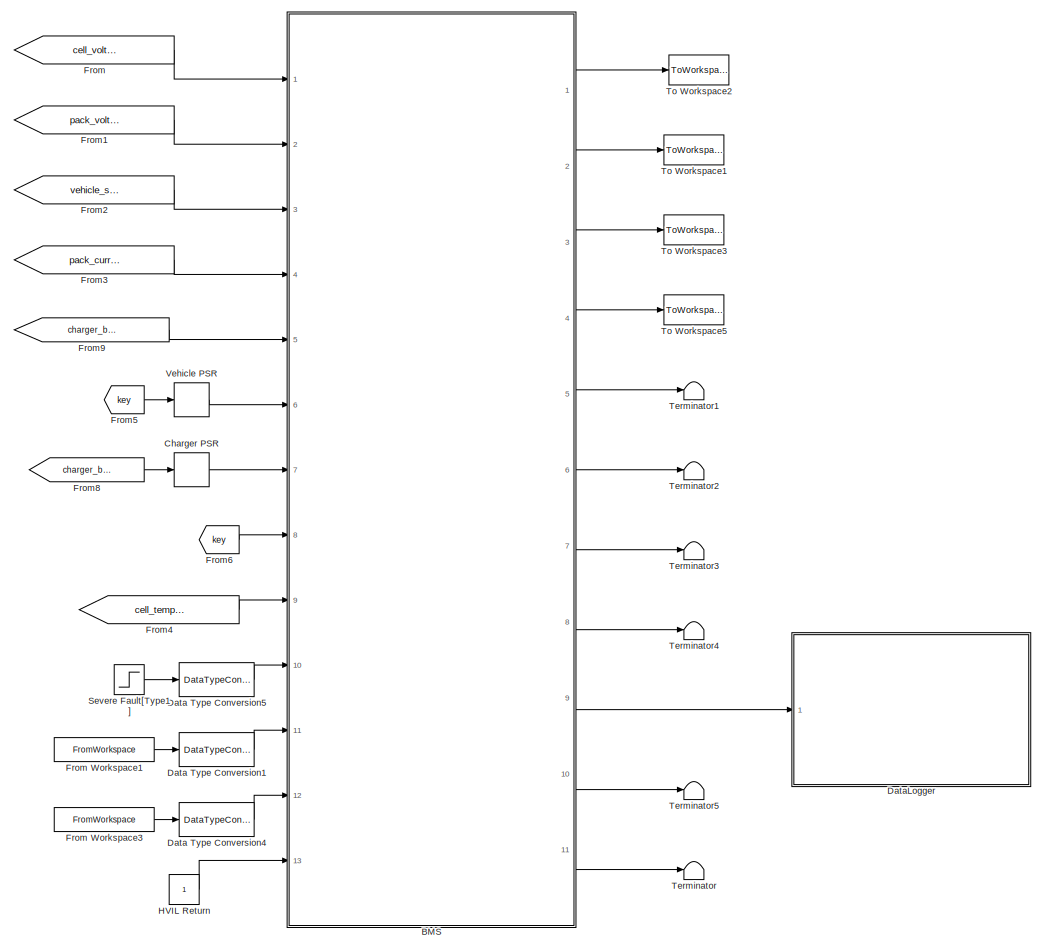
[diagram: root canvas - part 1/2, right side, full height]
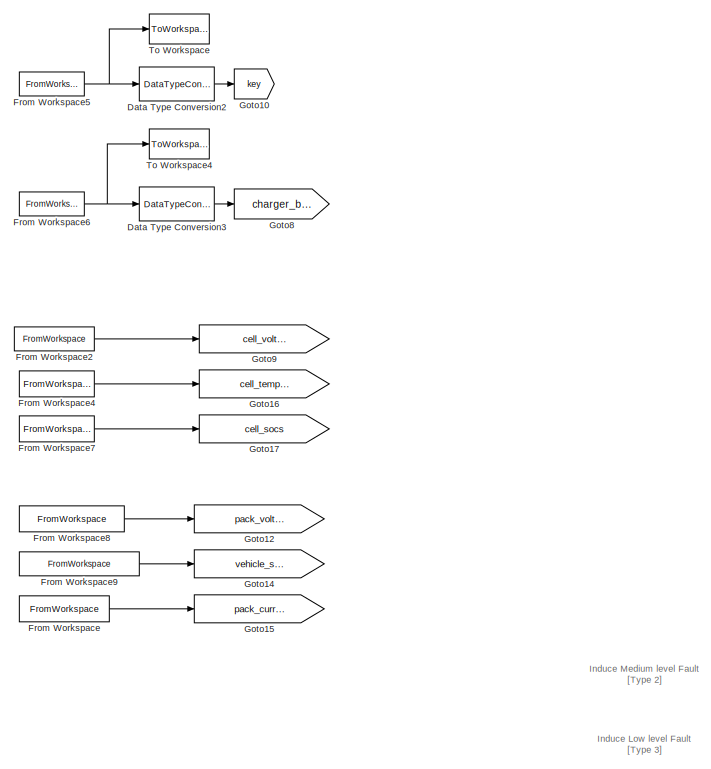
[diagram: root canvas - part 2/2, left side, full height]
MODEL slx_aaf03f47d59a
KIND model
CONFIG AbsTol = auto
CONFIG FixedStep = 0.1
CONFIG MaxStep = auto
CONFIG MinStep = auto
CONFIG RelTol = 1e-3
CONFIG SampleTimeConstraint = Unconstrained
CONFIG Solver = FixedStepDiscrete
CONFIG SolverMode = Auto
CONFIG SolverName = FixedStepDiscrete
CONFIG StartTime = 0.0
CONFIG StopTime = 150
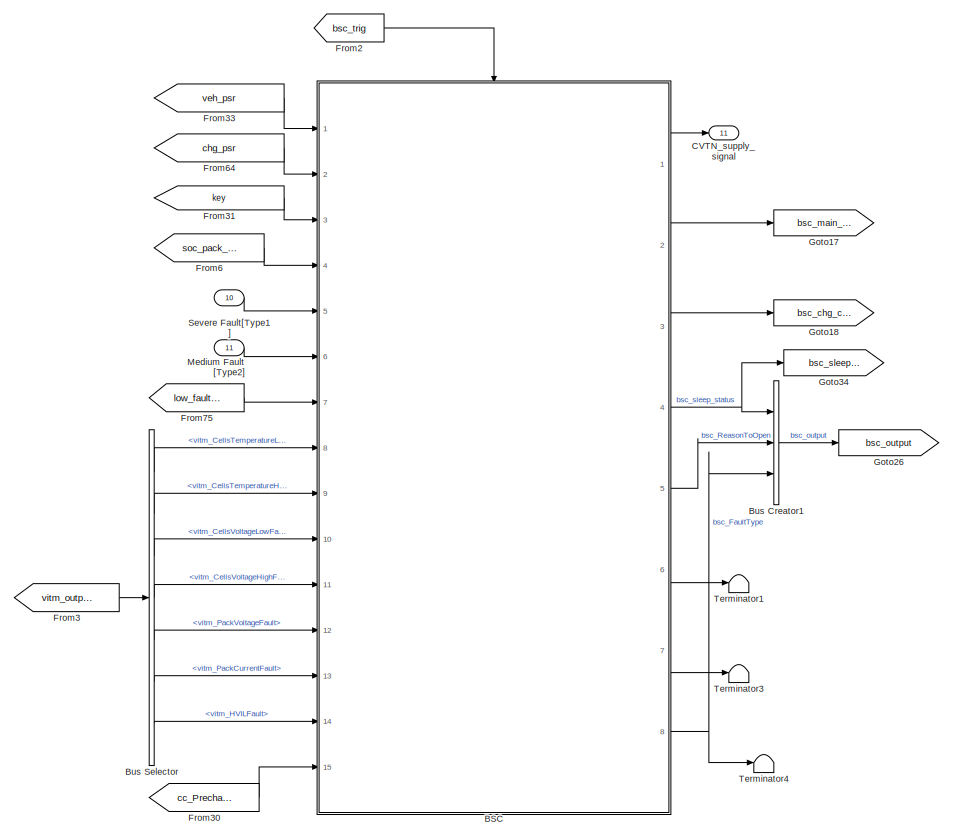
[diagram: BMS - part 1/9, top center region]
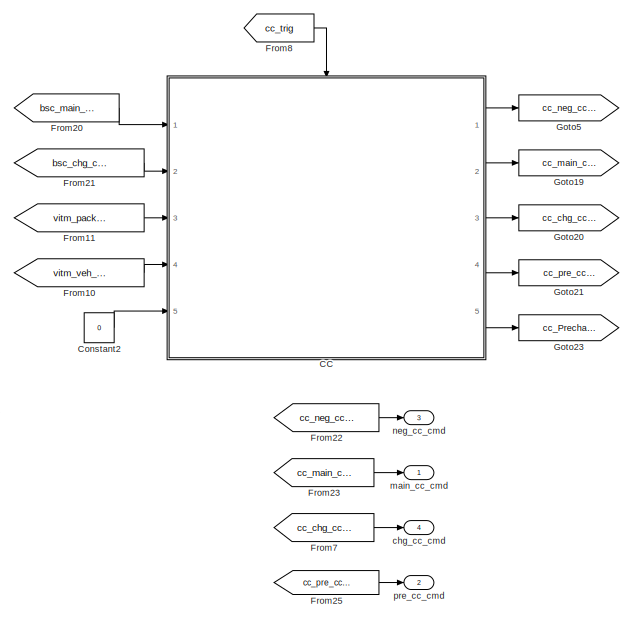
[diagram: BMS - part 2/9, top center region]
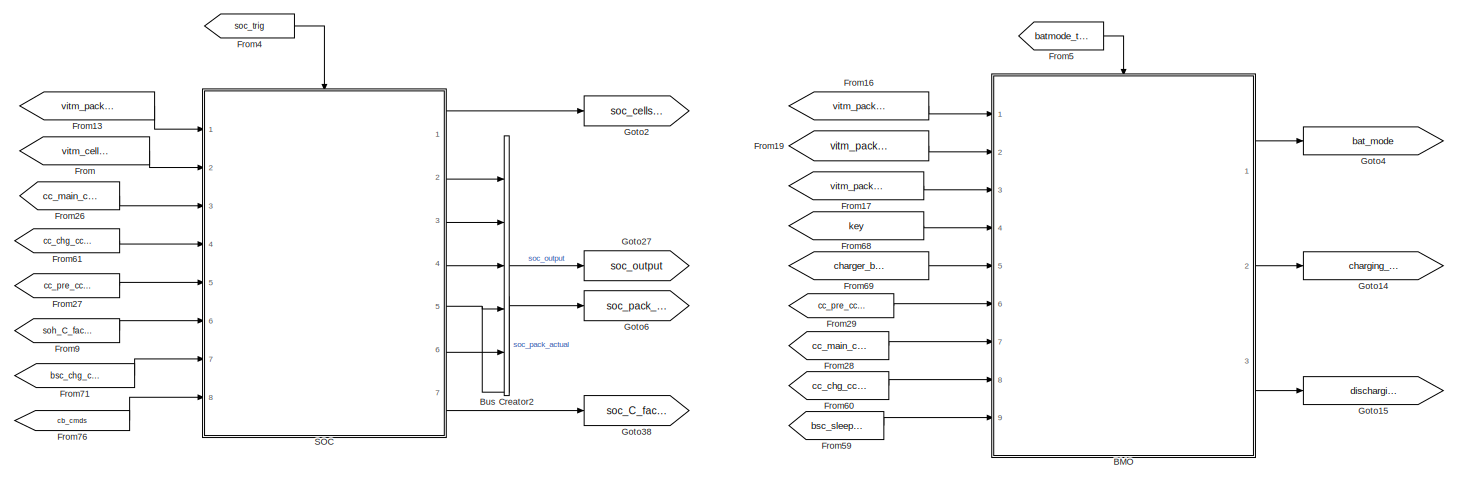
[diagram: BMS - part 3/9, top right region]
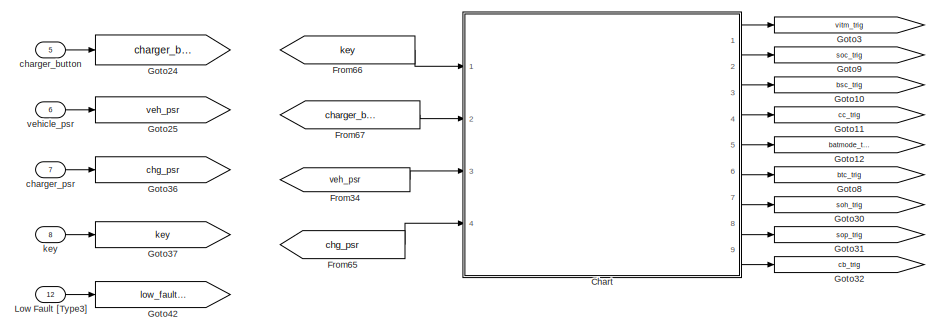
[diagram: BMS - part 4/9, top left region]
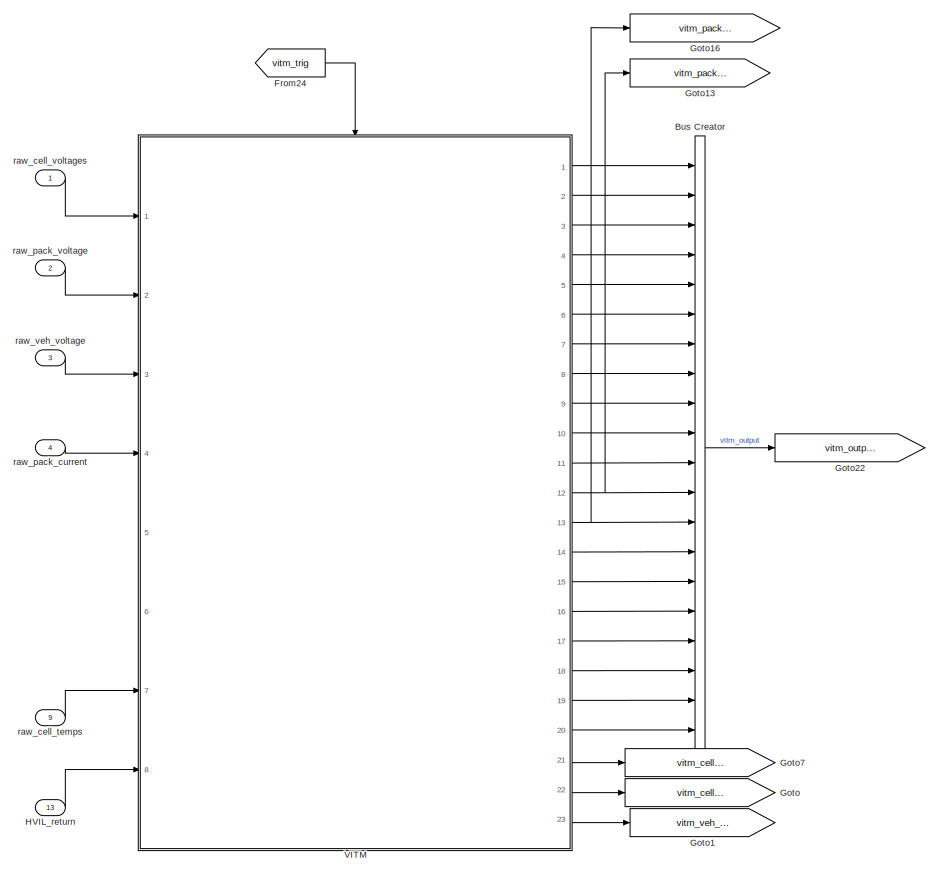
[diagram: BMS - part 5/9, middle left region]
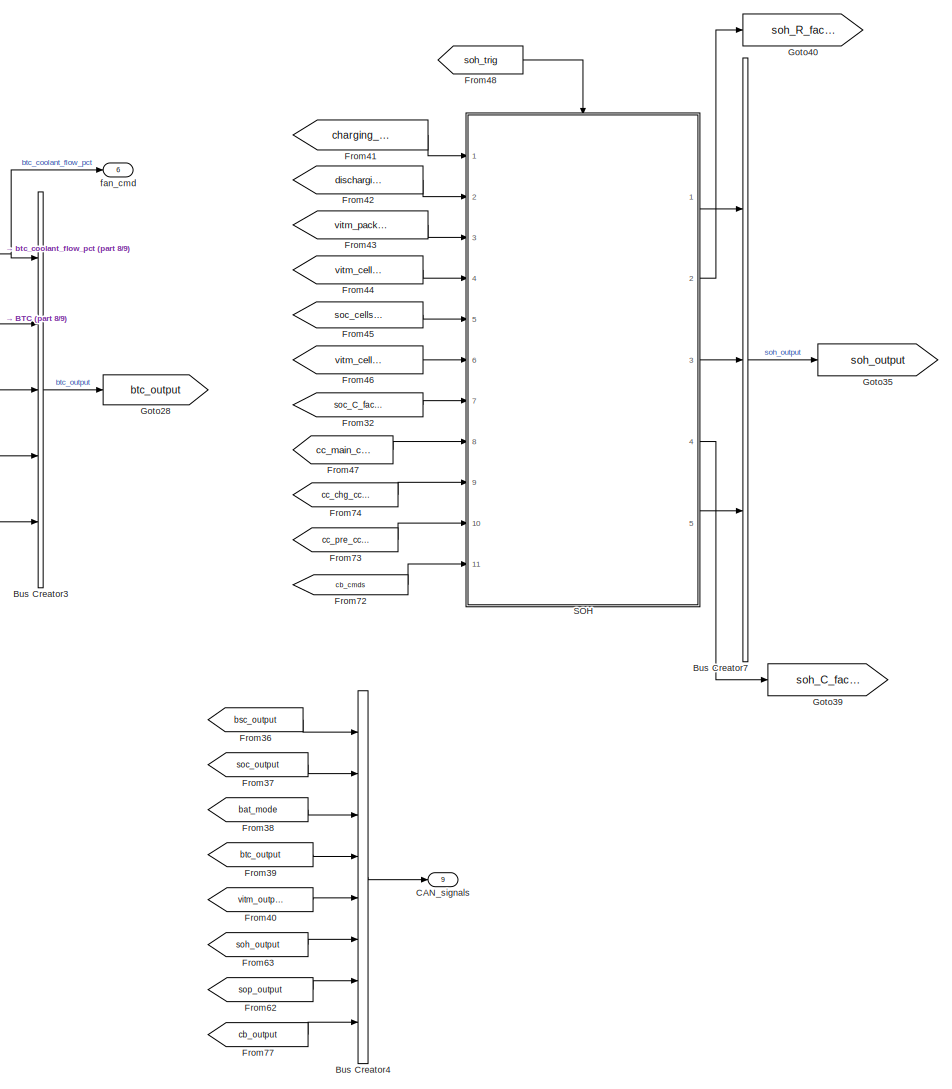
[diagram: BMS - part 6/9, bottom center region]
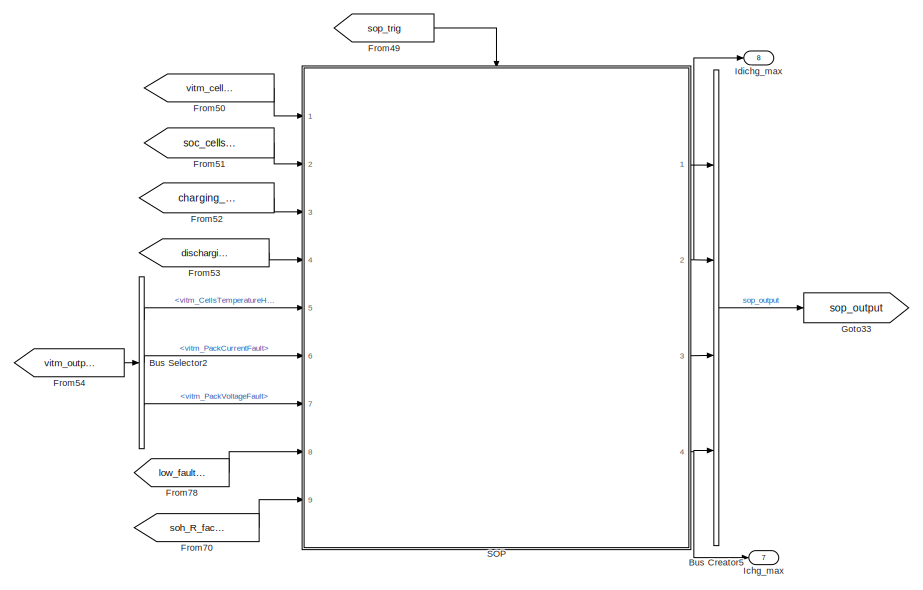
[diagram: BMS - part 7/9, middle right region]
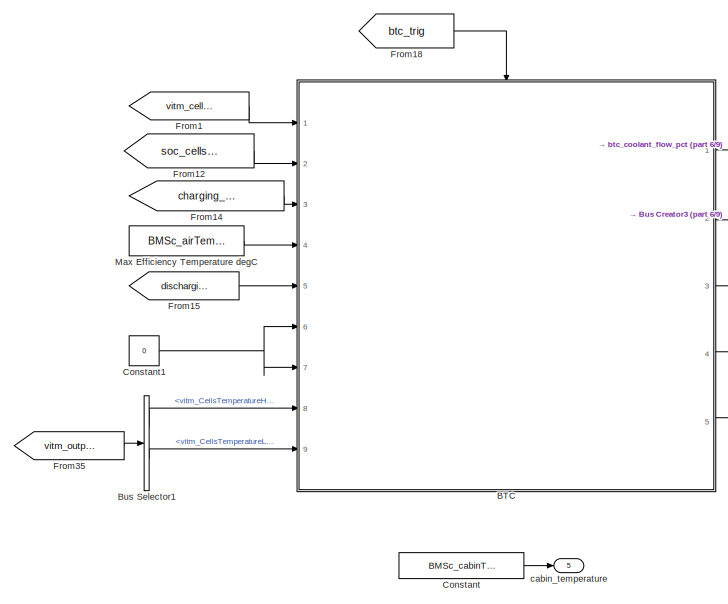
[diagram: BMS - part 8/9, middle left region]
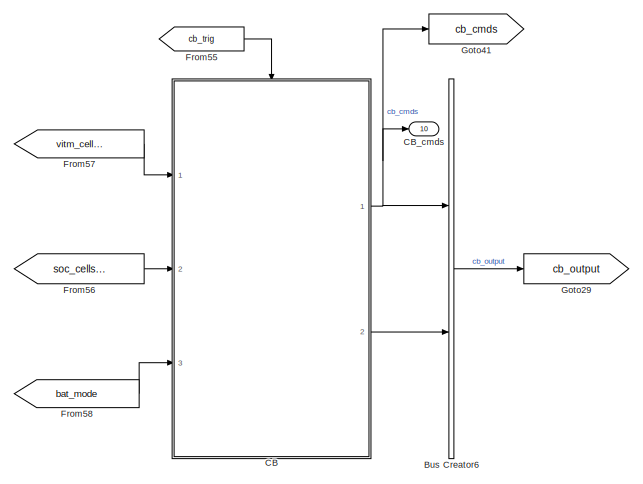
[diagram: BMS - part 9/9, middle right region]
BLOCK [SubSystem] BMS
  Ports = [13, 11]
  RequestExecContextInheritance = off
  Variant = off
BLOCK [ModelReference] BMS/BMO
  CopyOfModelName = BMO_sfun.slx
  ModelNameDialog = BMO_sfun.slx
  ModelReferenceVersion = 1.4
  Ports = [9, 3, 0, 1]
  TriggerPortName = Trigger
  TriggerPortStatesWhenEnabling = held
  TriggerPortTriggerType = function-call
  Variant = on
BLOCK [ModelReference] BMS/BSC
  CopyOfModelName = BSC_sfun.slx
  ModelNameDialog = BSC_sfun.slx
  ModelReferenceVersion = 1.3
  Ports = [15, 8, 0, 1]
  TriggerPortName = Trigger
  TriggerPortStatesWhenEnabling = held
  TriggerPortTriggerType = function-call
  Variant = on
BLOCK [ModelReference] BMS/BTC
  CopyOfModelName = BTC_sfun.slx
  ModelNameDialog = BTC_sfun.slx
  ModelReferenceVersion = 1.3
  Ports = [9, 5, 0, 1]
  TriggerPortName = Trigger
  TriggerPortStatesWhenEnabling = held
  TriggerPortTriggerType = function-call
  Variant = on
BLOCK [BusCreator] BMS/Bus Creator
  DisplayOption = bar
  InheritFromInputs = on
  Inputs = 20
  Ports = [20, 1]
BLOCK [BusCreator] BMS/Bus Creator1
  DisplayOption = bar
  InheritFromInputs = on
  Inputs = 3
  Ports = [3, 1]
BLOCK [BusCreator] BMS/Bus Creator2
  DisplayOption = bar
  InheritFromInputs = on
  Inputs = 5
  Ports = [5, 1]
BLOCK [BusCreator] BMS/Bus Creator3
  DisplayOption = bar
  InheritFromInputs = on
  Inputs = 5
  Ports = [5, 1]
BLOCK [BusCreator] BMS/Bus Creator4
  DisplayOption = bar
  InheritFromInputs = on
  Inputs = 8
  Ports = [8, 1]
BLOCK [BusCreator] BMS/Bus Creator5
  DisplayOption = bar
  InheritFromInputs = on
  Inputs = 4
  Ports = [4, 1]
BLOCK [BusCreator] BMS/Bus Creator6
  DisplayOption = bar
  InheritFromInputs = on
  Inputs = 2
  Ports = [2, 1]
BLOCK [BusCreator] BMS/Bus Creator7
  DisplayOption = bar
  InheritFromInputs = on
  Inputs = 3
  Ports = [3, 1]
BLOCK [BusSelector] BMS/Bus Selector
  OutputSignals = vitm_CellsTemperatureLowFault,vitm_CellsTemperatureHighFault,vitm_CellsVoltageLowFault,vitm_CellsVoltageHighFault,vitm_PackVoltageFault,vitm_PackCurrentFault,vitm_HVILFault
  Ports = [1, 7]
BLOCK [BusSelector] BMS/Bus Selector1
  OutputSignals = vitm_CellsTemperatureHighFault,vitm_CellsTemperatureLowFault
  Ports = [1, 2]
BLOCK [BusSelector] BMS/Bus Selector2
  OutputSignals = vitm_CellsTemperatureHighFault,vitm_PackCurrentFault,vitm_PackVoltageFault
  Ports = [1, 3]
BLOCK [Outport] BMS/CAN_signals
  IconDisplay = Port number
  Port = 9
BLOCK [ModelReference] BMS/CB
  CopyOfModelName = CB_sfun.slx
  ModelNameDialog = CB_sfun.slx
  ModelReferenceVersion = 1.3
  Ports = [3, 2, 0, 1]
  TriggerPortName = Trigger
  TriggerPortStatesWhenEnabling = held
  TriggerPortTriggerType = function-call
  Variant = on
BLOCK [Outport] BMS/CB_cmds
  IconDisplay = Port number
  Port = 10
BLOCK [ModelReference] BMS/CC
  CopyOfModelName = CC_sfun.slx
  ModelNameDialog = CC_sfun.slx
  ModelReferenceVersion = 1.2
  Ports = [5, 5, 0, 1]
  TriggerPortName = Trigger
  TriggerPortStatesWhenEnabling = held
  TriggerPortTriggerType = function-call
  Variant = on
BLOCK [Outport] BMS/CVTN_supply_signal
  IconDisplay = Port number
  Port = 11
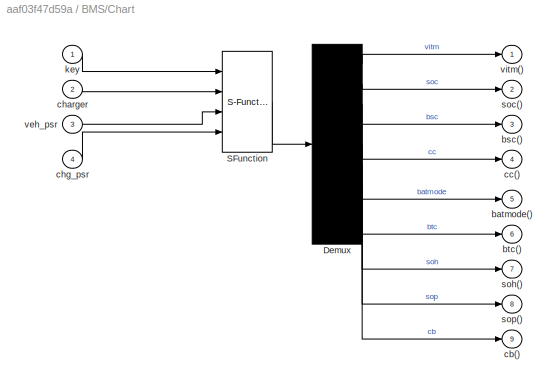
BLOCK [SubSystem] BMS/Chart
  ErrorFcn = Stateflow.Translate.translate
  PermitHierarchicalResolution = ExplicitOnly
  Ports = [4, 9]
  RequestExecContextInheritance = off
  SFBlockType = Chart
  TreatAsAtomicUnit = on
  Variant = off
BLOCK [Demux] BMS/Chart/ Demux 
  Outputs = 9
  Ports = [1, 9]
BLOCK [S-Function] BMS/Chart/ SFunction 
  EnableBusSupport = on
  FunctionName = sf_sfun
  PortCounts = [4 1]
  Ports = [4, 1]
  SFunctionDeploymentMode = off
  Tag = Stateflow S-Function BMS_OL_Harness_advancedcell 3
BLOCK [Outport] BMS/Chart/batmode()
  IconDisplay = Port number
  Port = 5
BLOCK [Outport] BMS/Chart/bsc()
  IconDisplay = Port number
  Port = 3
BLOCK [Outport] BMS/Chart/btc()
  IconDisplay = Port number
  Port = 6
BLOCK [Outport] BMS/Chart/cb()
  IconDisplay = Port number
  Port = 9
BLOCK [Outport] BMS/Chart/cc()
  IconDisplay = Port number
  Port = 4
BLOCK [Inport] BMS/Chart/charger
  IconDisplay = Port number
  Port = 2
BLOCK [Inport] BMS/Chart/chg_psr
  IconDisplay = Port number
  Port = 4
BLOCK [Inport] BMS/Chart/key
  IconDisplay = Port number
BLOCK [Outport] BMS/Chart/soc()
  IconDisplay = Port number
  Port = 2
BLOCK [Outport] BMS/Chart/soh()
  IconDisplay = Port number
  Port = 7
BLOCK [Outport] BMS/Chart/sop()
  IconDisplay = Port number
  Port = 8
BLOCK [Inport] BMS/Chart/veh_psr
  IconDisplay = Port number
  Port = 3
BLOCK [Outport] BMS/Chart/vitm()
  IconDisplay = Port number
BLOCK [Constant] BMS/Constant
  SampleTime = BMSk_stepSize
  Value = BMSc_cabinTemperature
BLOCK [Constant] BMS/Constant1
  OutDataTypeStr = boolean
  SampleTime = -1
  Value = 0
BLOCK [Constant] BMS/Constant2
  OutDataTypeStr = double
  SampleTime = -1
  Value = 0
BLOCK [From] BMS/From
  GotoTag = vitm_cell_voltages
BLOCK [From] BMS/From1
  GotoTag = vitm_cell_temps
BLOCK [From] BMS/From10
  GotoTag = vitm_veh_voltage
BLOCK [From] BMS/From11
  GotoTag = vitm_pack_voltage
BLOCK [From] BMS/From12
  GotoTag = soc_cells_pct
  TagVisibility = global
BLOCK [From] BMS/From13
  GotoTag = vitm_pack_current
BLOCK [From] BMS/From14
  GotoTag = charging_status
BLOCK [From] BMS/From15
  GotoTag = discharging_status
BLOCK [From] BMS/From16
  GotoTag = vitm_pack_voltage
BLOCK [From] BMS/From17
  GotoTag = vitm_pack_current
BLOCK [From] BMS/From18
  GotoTag = btc_trig
BLOCK [From] BMS/From19
  GotoTag = vitm_pack_voltage
BLOCK [From] BMS/From2
  GotoTag = bsc_trig
BLOCK [From] BMS/From20
  GotoTag = bsc_main_cc_cmd
BLOCK [From] BMS/From21
  GotoTag = bsc_chg_cc_cmd
BLOCK [From] BMS/From22
  GotoTag = cc_neg_cc_cmd
BLOCK [From] BMS/From23
  GotoTag = cc_main_cc_cmd
BLOCK [From] BMS/From24
  GotoTag = vitm_trig
BLOCK [From] BMS/From25
  GotoTag = cc_pre_cc_cmd
BLOCK [From] BMS/From26
  GotoTag = cc_main_cc_cmd
BLOCK [From] BMS/From27
  GotoTag = cc_pre_cc_cmd
BLOCK [From] BMS/From28
  GotoTag = cc_main_cc_cmd
BLOCK [From] BMS/From29
  GotoTag = cc_pre_cc_cmd
BLOCK [From] BMS/From3
  GotoTag = vitm_output
BLOCK [From] BMS/From30
  GotoTag = cc_PrechargeFault
BLOCK [From] BMS/From31
  GotoTag = key
BLOCK [From] BMS/From32
  GotoTag = soc_C_factors
  TagVisibility = global
BLOCK [From] BMS/From33
  GotoTag = veh_psr
BLOCK [From] BMS/From34
  GotoTag = veh_psr
BLOCK [From] BMS/From35
  GotoTag = vitm_output
BLOCK [From] BMS/From36
  GotoTag = bsc_output
BLOCK [From] BMS/From37
  GotoTag = soc_output
  TagVisibility = global
BLOCK [From] BMS/From38
  GotoTag = bat_mode
  TagVisibility = global
BLOCK [From] BMS/From39
  GotoTag = btc_output
  TagVisibility = global
BLOCK [From] BMS/From4
  GotoTag = soc_trig
BLOCK [From] BMS/From40
  GotoTag = vitm_output
BLOCK [From] BMS/From41
  GotoTag = charging_status
BLOCK [From] BMS/From42
  GotoTag = discharging_status
BLOCK [From] BMS/From43
  GotoTag = vitm_pack_current
BLOCK [From] BMS/From44
  GotoTag = vitm_cell_voltages
BLOCK [From] BMS/From45
  GotoTag = soc_cells_pct
  TagVisibility = global
BLOCK [From] BMS/From46
  GotoTag = vitm_cell_temps
BLOCK [From] BMS/From47
  GotoTag = cc_main_cc_cmd
BLOCK [From] BMS/From48
  GotoTag = soh_trig
BLOCK [From] BMS/From49
  GotoTag = sop_trig
BLOCK [From] BMS/From5
  GotoTag = batmode_trig
BLOCK [From] BMS/From50
  GotoTag = vitm_cell_temps
BLOCK [From] BMS/From51
  GotoTag = soc_cells_pct
  TagVisibility = global
BLOCK [From] BMS/From52
  GotoTag = charging_status
BLOCK [From] BMS/From53
  GotoTag = discharging_status
BLOCK [From] BMS/From54
  GotoTag = vitm_output
BLOCK [From] BMS/From55
  GotoTag = cb_trig
BLOCK [From] BMS/From56
  GotoTag = soc_cells_pct
  TagVisibility = global
BLOCK [From] BMS/From57
  GotoTag = vitm_cell_voltages
BLOCK [From] BMS/From58
  GotoTag = bat_mode
  TagVisibility = global
BLOCK [From] BMS/From59
  GotoTag = bsc_sleep_status
BLOCK [From] BMS/From6
  GotoTag = soc_pack_actual
  TagVisibility = global
BLOCK [From] BMS/From60
  GotoTag = cc_chg_cc_cmd
BLOCK [From] BMS/From61
  GotoTag = cc_chg_cc_cmd
BLOCK [From] BMS/From62
  GotoTag = sop_output
  TagVisibility = global
BLOCK [From] BMS/From63
  GotoTag = soh_output
  TagVisibility = global
BLOCK [From] BMS/From64
  GotoTag = chg_psr
BLOCK [From] BMS/From65
  GotoTag = chg_psr
BLOCK [From] BMS/From66
  GotoTag = key
BLOCK [From] BMS/From67
  GotoTag = charger_button
BLOCK [From] BMS/From68
  GotoTag = key
BLOCK [From] BMS/From69
  GotoTag = charger_button
BLOCK [From] BMS/From7
  GotoTag = cc_chg_cc_cmd
BLOCK [From] BMS/From70
  GotoTag = soh_R_factors
  TagVisibility = global
BLOCK [From] BMS/From71
  GotoTag = bsc_chg_cc_cmd
BLOCK [From] BMS/From72
  GotoTag = cb_cmds
BLOCK [From] BMS/From73
  GotoTag = cc_pre_cc_cmd
BLOCK [From] BMS/From74
  GotoTag = cc_chg_cc_cmd
BLOCK [From] BMS/From75
  GotoTag = low_fault_Type3
BLOCK [From] BMS/From76
  GotoTag = cb_cmds
BLOCK [From] BMS/From77
  GotoTag = cb_output
  TagVisibility = global
BLOCK [From] BMS/From78
  GotoTag = low_fault_Type3
BLOCK [From] BMS/From8
  GotoTag = cc_trig
BLOCK [From] BMS/From9
  GotoTag = soh_C_factors
  TagVisibility = global
BLOCK [Goto] BMS/Goto
  GotoTag = vitm_cell_voltages
BLOCK [Goto] BMS/Goto1
  GotoTag = vitm_veh_voltage
BLOCK [Goto] BMS/Goto10
  GotoTag = bsc_trig
BLOCK [Goto] BMS/Goto11
  GotoTag = cc_trig
BLOCK [Goto] BMS/Goto12
  GotoTag = batmode_trig
BLOCK [Goto] BMS/Goto13
  GotoTag = vitm_pack_voltage
BLOCK [Goto] BMS/Goto14
  GotoTag = charging_status
BLOCK [Goto] BMS/Goto15
  GotoTag = discharging_status
BLOCK [Goto] BMS/Goto16
  GotoTag = vitm_pack_current
BLOCK [Goto] BMS/Goto17
  GotoTag = bsc_main_cc_cmd
BLOCK [Goto] BMS/Goto18
  GotoTag = bsc_chg_cc_cmd
BLOCK [Goto] BMS/Goto19
  GotoTag = cc_main_cc_cmd
BLOCK [Goto] BMS/Goto2
  GotoTag = soc_cells_pct
  TagVisibility = global
BLOCK [Goto] BMS/Goto20
  GotoTag = cc_chg_cc_cmd
BLOCK [Goto] BMS/Goto21
  GotoTag = cc_pre_cc_cmd
BLOCK [Goto] BMS/Goto22
  GotoTag = vitm_output
BLOCK [Goto] BMS/Goto23
  GotoTag = cc_PrechargeFault
BLOCK [Goto] BMS/Goto24
  GotoTag = charger_button
BLOCK [Goto] BMS/Goto25
  GotoTag = veh_psr
BLOCK [Goto] BMS/Goto26
  GotoTag = bsc_output
BLOCK [Goto] BMS/Goto27
  GotoTag = soc_output
  TagVisibility = global
BLOCK [Goto] BMS/Goto28
  GotoTag = btc_output
  TagVisibility = global
BLOCK [Goto] BMS/Goto29
  GotoTag = cb_output
  TagVisibility = global
BLOCK [Goto] BMS/Goto3
  GotoTag = vitm_trig
BLOCK [Goto] BMS/Goto30
  GotoTag = soh_trig
BLOCK [Goto] BMS/Goto31
  GotoTag = sop_trig
BLOCK [Goto] BMS/Goto32
  GotoTag = cb_trig
BLOCK [Goto] BMS/Goto33
  GotoTag = sop_output
  TagVisibility = global
BLOCK [Goto] BMS/Goto34
  GotoTag = bsc_sleep_status
BLOCK [Goto] BMS/Goto35
  GotoTag = soh_output
  TagVisibility = global
BLOCK [Goto] BMS/Goto36
  GotoTag = chg_psr
BLOCK [Goto] BMS/Goto37
  GotoTag = key
BLOCK [Goto] BMS/Goto38
  GotoTag = soc_C_factors
  TagVisibility = global
BLOCK [Goto] BMS/Goto39
  GotoTag = soh_C_factors
  TagVisibility = global
BLOCK [Goto] BMS/Goto4
  GotoTag = bat_mode
  TagVisibility = global
BLOCK [Goto] BMS/Goto40
  GotoTag = soh_R_factors
  TagVisibility = global
BLOCK [Goto] BMS/Goto41
  GotoTag = cb_cmds
BLOCK [Goto] BMS/Goto42
  GotoTag = low_fault_Type3
BLOCK [Goto] BMS/Goto5
  GotoTag = cc_neg_cc_cmd
BLOCK [Goto] BMS/Goto6
  GotoTag = soc_pack_actual
  TagVisibility = global
BLOCK [Goto] BMS/Goto7
  GotoTag = vitm_cell_temps
BLOCK [Goto] BMS/Goto8
  GotoTag = btc_trig
BLOCK [Goto] BMS/Goto9
  GotoTag = soc_trig
BLOCK [Inport] BMS/HVIL_return
  IconDisplay = Port number
  OutDataTypeStr = double
  Port = 13
BLOCK [Outport] BMS/Ichg_max
  IconDisplay = Port number
  Port = 7
BLOCK [Outport] BMS/Idichg_max
  IconDisplay = Port number
  Port = 8
BLOCK [Inport] BMS/Low Fault [Type3]
  IconDisplay = Port number
  Port = 12
BLOCK [Constant] BMS/Max Efficiency Temperature degC
  SampleTime = BMSk_stepSize
  Value = BMSc_airTemperature
BLOCK [Inport] BMS/Medium Fault [Type2]
  IconDisplay = Port number
  Port = 11
BLOCK [ModelReference] BMS/SOC
  CopyOfModelName = SOC.slx
  ModelNameDialog = SOC.slx
  ModelReferenceVersion = 1.297
  Ports = [8, 7, 0, 1]
  TriggerPortName = Trigger
  TriggerPortStatesWhenEnabling = held
  TriggerPortTriggerType = function-call
  Variant = on
BLOCK [ModelReference] BMS/SOH
  CopyOfModelName = soh_sfun.slx
  ModelNameDialog = soh_sfun.slx
  ModelReferenceVersion = 1.3
  Ports = [11, 5, 0, 1]
  TriggerPortName = Trigger
  TriggerPortStatesWhenEnabling = held
  TriggerPortTriggerType = function-call
  Variant = on
BLOCK [ModelReference] BMS/SOP
  CopyOfModelName = sop_sfun.slx
  ModelNameDialog = sop_sfun.slx
  ModelReferenceVersion = 1.4
  Ports = [9, 4, 0, 1]
  TriggerPortName = Trigger
  TriggerPortStatesWhenEnabling = held
  TriggerPortTriggerType = function-call
  Variant = on
BLOCK [Inport] BMS/Severe Fault[Type1]
  IconDisplay = Port number
  Port = 10
BLOCK [Terminator] BMS/Terminator1
BLOCK [Terminator] BMS/Terminator3
BLOCK [Terminator] BMS/Terminator4
BLOCK [ModelReference] BMS/VITM
  CopyOfModelName = VITM_sfun.slx
  ModelNameDialog = VITM_sfun.slx
  ModelReferenceVersion = 1.3
  Ports = [8, 23, 0, 1]
  TriggerPortName = Trigger
  TriggerPortStatesWhenEnabling = held
  TriggerPortTriggerType = function-call
  Variant = on
BLOCK [Outport] BMS/cabin_temperature
  IconDisplay = Port number
  Port = 5
BLOCK [Inport] BMS/charger_button
  IconDisplay = Port number
  OutDataTypeStr = uint8
  Port = 5
BLOCK [Inport] BMS/charger_psr
  IconDisplay = Port number
  Port = 7
BLOCK [Outport] BMS/chg_cc_cmd
  IconDisplay = Port number
  Port = 4
BLOCK [Outport] BMS/fan_cmd
  IconDisplay = Port number
  Port = 6
BLOCK [Inport] BMS/key
  IconDisplay = Port number
  OutDataTypeStr = uint8
  Port = 8
BLOCK [Outport] BMS/main_cc_cmd
  IconDisplay = Port number
BLOCK [Outport] BMS/neg_cc_cmd
  IconDisplay = Port number
  Port = 3
BLOCK [Outport] BMS/pre_cc_cmd
  IconDisplay = Port number
  Port = 2
BLOCK [Inport] BMS/raw_cell_temps
  IconDisplay = Port number
  Port = 9
BLOCK [Inport] BMS/raw_cell_voltages
  IconDisplay = Port number
BLOCK [Inport] BMS/raw_pack_current
  IconDisplay = Port number
  Port = 4
BLOCK [Inport] BMS/raw_pack_voltage
  IconDisplay = Port number
  Port = 2
BLOCK [Inport] BMS/raw_veh_voltage
  IconDisplay = Port number
  Port = 3
BLOCK [Inport] BMS/vehicle_psr
  IconDisplay = Port number
  Port = 6
BLOCK [Delay] Charger PSR
  DelayLength = 0.2/BMSk_stepSize
  InputPortMap = u0
  Ports = [1, 1]
BLOCK [DataTypeConversion] Data Type Conversion1
  RndMeth = Floor
  SaturateOnIntegerOverflow = off
BLOCK [DataTypeConversion] Data Type Conversion2
  RndMeth = Floor
  SaturateOnIntegerOverflow = off
BLOCK [DataTypeConversion] Data Type Conversion3
  RndMeth = Floor
  SaturateOnIntegerOverflow = off
BLOCK [DataTypeConversion] Data Type Conversion4
  RndMeth = Floor
  SaturateOnIntegerOverflow = off
BLOCK [DataTypeConversion] Data Type Conversion5
  RndMeth = Floor
  SaturateOnIntegerOverflow = off
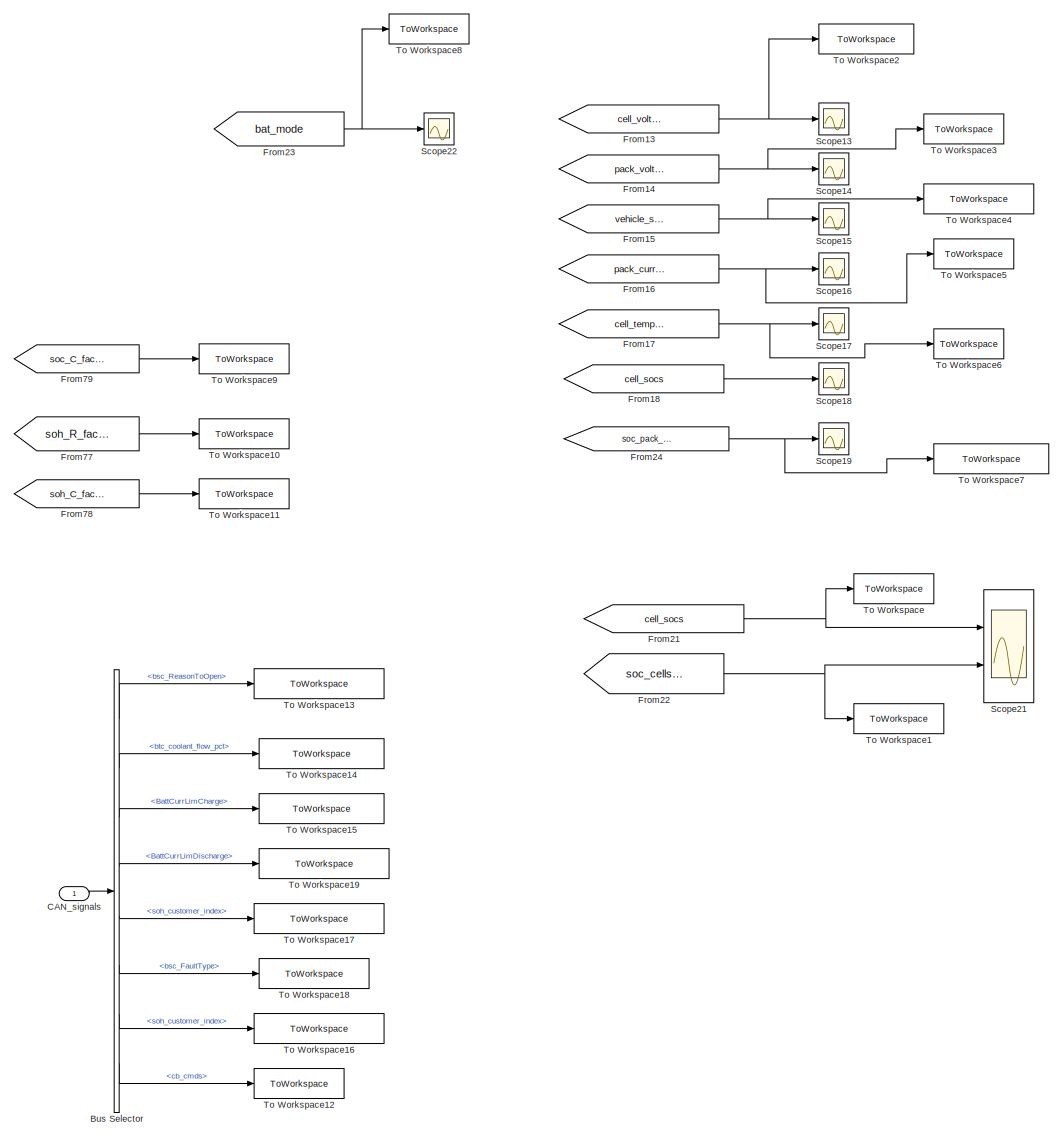
[diagram: DataLogger - part 1/1, most of the canvas]
BLOCK [SubSystem] DataLogger
  Ports = [1]
  RequestExecContextInheritance = off
  Variant = off
BLOCK [BusSelector] DataLogger/Bus Selector
  OutputSignals = bsc_output.bsc_ReasonToOpen,btc_output.btc_coolant_flow_pct,sop_output.BattCurrLimCharge,sop_output.BattCurrLimDischarge,soh_output.soh_customer_index,bsc_output.bsc_FaultType,soh_output.soh_customer_index,cb_output.cb_cmds
  Ports = [1, 8]
BLOCK [Inport] DataLogger/CAN_signals
  IconDisplay = Port number
BLOCK [From] DataLogger/From13
  CloseFcn = tagdialog Close
  GotoTag = cell_voltages
  TagVisibility = global
BLOCK [From] DataLogger/From14
  CloseFcn = tagdialog Close
  GotoTag = pack_voltage
  TagVisibility = global
BLOCK [From] DataLogger/From15
  CloseFcn = tagdialog Close
  GotoTag = vehicle_side_voltage
  TagVisibility = global
BLOCK [From] DataLogger/From16
  CloseFcn = tagdialog Close
  GotoTag = pack_current
  TagVisibility = global
BLOCK [From] DataLogger/From17
  CloseFcn = tagdialog Close
  GotoTag = cell_temperatures
  TagVisibility = global
BLOCK [From] DataLogger/From18
  CloseFcn = tagdialog Close
  GotoTag = cell_socs
  TagVisibility = global
BLOCK [From] DataLogger/From21
  CloseFcn = tagdialog Close
  GotoTag = cell_socs
  TagVisibility = global
BLOCK [From] DataLogger/From22
  CloseFcn = tagdialog Close
  GotoTag = soc_cells_pct
  TagVisibility = global
BLOCK [From] DataLogger/From23
  GotoTag = bat_mode
  TagVisibility = global
BLOCK [From] DataLogger/From24
  GotoTag = soc_pack_actual
  TagVisibility = global
BLOCK [From] DataLogger/From77
  GotoTag = soh_R_factors
  TagVisibility = global
BLOCK [From] DataLogger/From78
  GotoTag = soh_C_factors
  TagVisibility = global
BLOCK [From] DataLogger/From79
  GotoTag = soc_C_factors
  TagVisibility = global
BLOCK [Scope] DataLogger/Scope13
  Ports = [1]
  ScopeSpecificationString = Simulink.scopes.TimeScopeBlockCfg('CurrentConfiguration', extmgr.ConfigurationSet(extmgr.Configuration('Core','General UI',true),extmgr.Configuration('Core','Source UI',true),extmgr.Configuration('Sources','WiredSimulink',true,'DataLoggingVariableName','cell_voltages','DataLoggingSaveFormat','StructureWithTime','DataLoggingDecimation','1','DataLoggingDecimateData',true),extmgr.Configuration('Visua...<+2415ch>
BLOCK [Scope] DataLogger/Scope14
  Ports = [1]
  ScopeSpecificationString = Simulink.scopes.TimeScopeBlockCfg('CurrentConfiguration', extmgr.ConfigurationSet(extmgr.Configuration('Core','General UI',true),extmgr.Configuration('Core','Source UI',true),extmgr.Configuration('Sources','WiredSimulink',true,'DataLoggingVariableName','pack_voltage','DataLoggingSaveFormat','StructureWithTime','DataLoggingDecimation','1','DataLoggingDecimateData',true),extmgr.Configuration('Visual...<+1699ch>
BLOCK [Scope] DataLogger/Scope15
  Ports = [1]
  ScopeSpecificationString = Simulink.scopes.TimeScopeBlockCfg('CurrentConfiguration', extmgr.ConfigurationSet(extmgr.Configuration('Core','General UI',true),extmgr.Configuration('Core','Source UI',true),extmgr.Configuration('Sources','WiredSimulink',true,'DataLoggingVariableName','vehicle_side_voltage','DataLoggingSaveFormat','StructureWithTime','DataLoggingDecimation','1','DataLoggingDecimateData',true),extmgr.Configuration...<+1710ch>
BLOCK [Scope] DataLogger/Scope16
  Ports = [1]
  ScopeSpecificationString = Simulink.scopes.TimeScopeBlockCfg('CurrentConfiguration', extmgr.ConfigurationSet(extmgr.Configuration('Core','General UI',true),extmgr.Configuration('Core','Source UI',true),extmgr.Configuration('Sources','WiredSimulink',true,'DataLoggingVariableName','pack_current','DataLoggingSaveFormat','StructureWithTime','DataLoggingDecimation','1','DataLoggingDecimateData',true),extmgr.Configuration('Visual...<+1741ch>
BLOCK [Scope] DataLogger/Scope17
  Ports = [1]
  ScopeSpecificationString = Simulink.scopes.TimeScopeBlockCfg('CurrentConfiguration', extmgr.ConfigurationSet(extmgr.Configuration('Core','General UI',true),extmgr.Configuration('Core','Source UI',true),extmgr.Configuration('Sources','WiredSimulink',true,'DataLoggingVariableName','cell_temperatures','DataLoggingSaveFormat','StructureWithTime','DataLoggingDecimation','1','DataLoggingDecimateData',true),extmgr.Configuration('V...<+2512ch>
BLOCK [Scope] DataLogger/Scope18
  Ports = [1]
  ScopeSpecificationString = Simulink.scopes.TimeScopeBlockCfg('CurrentConfiguration', extmgr.ConfigurationSet(extmgr.Configuration('Core','General UI',true),extmgr.Configuration('Core','Source UI',true),extmgr.Configuration('Sources','WiredSimulink',true,'DataLoggingVariableName','cell_socs','DataLoggingSaveFormat','StructureWithTime','DataLoggingDecimation','1','DataLoggingDecimateData',true),extmgr.Configuration('Visuals',...<+2859ch>
BLOCK [Scope] DataLogger/Scope19
  Ports = [1]
  ScopeSpecificationString = Simulink.scopes.TimeScopeBlockCfg('CurrentConfiguration', extmgr.ConfigurationSet(extmgr.Configuration('Core','General UI',true),extmgr.Configuration('Core','Source UI',true),extmgr.Configuration('Sources','WiredSimulink',true,'DataLoggingVariableName','pack_soc','DataLoggingSaveFormat','StructureWithTime','DataLoggingDecimation','1','DataLoggingDecimateData',true),extmgr.Configuration('Visuals','...<+1700ch>
BLOCK [Scope] DataLogger/Scope21
  NumInputPorts = 2
  Ports = [2]
  ScopeSpecificationString = Simulink.scopes.TimeScopeBlockCfg('CurrentConfiguration', extmgr.ConfigurationSet(extmgr.Configuration('Core','General UI',true),extmgr.Configuration('Core','Source UI',true),extmgr.Configuration('Sources','WiredSimulink',true,'DataLogging',true,'DataLoggingVariableName','cell_socs1','DataLoggingSaveFormat','StructureWithTime','DataLoggingDecimation','1','DataLoggingDecimateData',true),extmgr.Conf...<+3501ch>
BLOCK [Scope] DataLogger/Scope22
  Ports = [1]
  ScopeSpecificationString = Simulink.scopes.TimeScopeBlockCfg('CurrentConfiguration', extmgr.ConfigurationSet(extmgr.Configuration('Core','General UI',true),extmgr.Configuration('Core','Source UI',true),extmgr.Configuration('Sources','WiredSimulink',true,'DataLoggingVariableName','ScopeData14'),extmgr.Configuration('Visuals','Time Domain',true,'SerializedDisplays',{struct('MinYLimReal','-0.875','MaxYLimReal','7.875','YLabelR...<+1431ch>
BLOCK [ToWorkspace] DataLogger/To Workspace
  FixptAsFi = on
  MaxDataPoints = inf
  Ports = [1]
  SampleTime = -1
  Save2DSignal = 3-D array (concatenate along third dimension)
  SaveFormat = Timeseries
  VariableName = OL_original_soc
BLOCK [ToWorkspace] DataLogger/To Workspace1
  FixptAsFi = on
  MaxDataPoints = inf
  Ports = [1]
  SampleTime = -1
  Save2DSignal = 3-D array (concatenate along third dimension)
  SaveFormat = Timeseries
  VariableName = OL_calculated_soc
BLOCK [ToWorkspace] DataLogger/To Workspace10
  FixptAsFi = on
  MaxDataPoints = inf
  Ports = [1]
  SampleTime = -1
  Save2DSignal = 3-D array (concatenate along third dimension)
  SaveFormat = Timeseries
  VariableName = OL_soh_R_factors
BLOCK [ToWorkspace] DataLogger/To Workspace11
  FixptAsFi = on
  MaxDataPoints = inf
  Ports = [1]
  SampleTime = -1
  Save2DSignal = 3-D array (concatenate along third dimension)
  SaveFormat = Timeseries
  VariableName = OL_soh_C_factors
BLOCK [ToWorkspace] DataLogger/To Workspace12
  FixptAsFi = on
  MaxDataPoints = inf
  Ports = [1]
  SampleTime = -1
  Save2DSignal = 3-D array (concatenate along third dimension)
  SaveFormat = Timeseries
  VariableName = OL_cb_cmds
BLOCK [ToWorkspace] DataLogger/To Workspace13
  FixptAsFi = on
  MaxDataPoints = inf
  Ports = [1]
  SampleTime = -1
  Save2DSignal = 3-D array (concatenate along third dimension)
  SaveFormat = Timeseries
  VariableName = OL_bsc_ReasonToOpen
BLOCK [ToWorkspace] DataLogger/To Workspace14
  FixptAsFi = on
  MaxDataPoints = inf
  Ports = [1]
  SampleTime = -1
  Save2DSignal = 3-D array (concatenate along third dimension)
  SaveFormat = Timeseries
  VariableName = OL_coolant_flow_pct
BLOCK [ToWorkspace] DataLogger/To Workspace15
  FixptAsFi = on
  MaxDataPoints = inf
  Ports = [1]
  SampleTime = -1
  Save2DSignal = 3-D array (concatenate along third dimension)
  SaveFormat = Timeseries
  VariableName = OL_BattCurrLimCharge
BLOCK [ToWorkspace] DataLogger/To Workspace16
  FixptAsFi = on
  MaxDataPoints = inf
  Ports = [1]
  SampleTime = -1
  Save2DSignal = 3-D array (concatenate along third dimension)
  SaveFormat = Timeseries
  VariableName = OL_soh_customer_index
BLOCK [ToWorkspace] DataLogger/To Workspace17
  FixptAsFi = on
  MaxDataPoints = inf
  Ports = [1]
  SampleTime = -1
  Save2DSignal = 3-D array (concatenate along third dimension)
  SaveFormat = Timeseries
  VariableName = OL_soh_index
BLOCK [ToWorkspace] DataLogger/To Workspace18
  FixptAsFi = on
  MaxDataPoints = inf
  Ports = [1]
  SampleTime = -1
  Save2DSignal = 3-D array (concatenate along third dimension)
  SaveFormat = Timeseries
  VariableName = OL_fault_type
BLOCK [ToWorkspace] DataLogger/To Workspace19
  FixptAsFi = on
  MaxDataPoints = inf
  Ports = [1]
  SampleTime = -1
  Save2DSignal = 3-D array (concatenate along third dimension)
  SaveFormat = Timeseries
  VariableName = OL_BattCurrLimDischarge
BLOCK [ToWorkspace] DataLogger/To Workspace2
  FixptAsFi = on
  MaxDataPoints = inf
  Ports = [1]
  SampleTime = -1
  Save2DSignal = 3-D array (concatenate along third dimension)
  SaveFormat = Timeseries
  VariableName = OL_cell_voltages
BLOCK [ToWorkspace] DataLogger/To Workspace3
  FixptAsFi = on
  MaxDataPoints = inf
  Ports = [1]
  SampleTime = -1
  Save2DSignal = 3-D array (concatenate along third dimension)
  SaveFormat = Timeseries
  VariableName = OL_pack_voltage
BLOCK [ToWorkspace] DataLogger/To Workspace4
  FixptAsFi = on
  MaxDataPoints = inf
  Ports = [1]
  SampleTime = -1
  Save2DSignal = 3-D array (concatenate along third dimension)
  SaveFormat = Timeseries
  VariableName = OL_vehicle_side_voltage
BLOCK [ToWorkspace] DataLogger/To Workspace5
  FixptAsFi = on
  MaxDataPoints = inf
  Ports = [1]
  SampleTime = -1
  Save2DSignal = 3-D array (concatenate along third dimension)
  SaveFormat = Timeseries
  VariableName = OL_pack_current
BLOCK [ToWorkspace] DataLogger/To Workspace6
  FixptAsFi = on
  MaxDataPoints = inf
  Ports = [1]
  SampleTime = -1
  Save2DSignal = 3-D array (concatenate along third dimension)
  SaveFormat = Timeseries
  VariableName = OL_cell_temps
BLOCK [ToWorkspace] DataLogger/To Workspace7
  FixptAsFi = on
  MaxDataPoints = inf
  Ports = [1]
  SampleTime = -1
  Save2DSignal = 3-D array (concatenate along third dimension)
  SaveFormat = Timeseries
  VariableName = OL_soc_pack_actual
BLOCK [ToWorkspace] DataLogger/To Workspace8
  FixptAsFi = on
  MaxDataPoints = inf
  Ports = [1]
  SampleTime = -1
  Save2DSignal = 3-D array (concatenate along third dimension)
  SaveFormat = Timeseries
  VariableName = OL_bat_mode
BLOCK [ToWorkspace] DataLogger/To Workspace9
  FixptAsFi = on
  MaxDataPoints = inf
  Ports = [1]
  SampleTime = -1
  Save2DSignal = 3-D array (concatenate along third dimension)
  SaveFormat = Timeseries
  VariableName = OL_soc_C_factors
BLOCK [From] From
  CloseFcn = tagdialog Close
  GotoTag = cell_voltages
  TagVisibility = global
BLOCK [FromWorkspace] From Workspace
  SampleTime = BMSk_stepSize
  VariableName = CL_pack_current
  ZeroCross = on
BLOCK [FromWorkspace] From Workspace1
  SampleTime = BMSk_stepSize
  VariableName = medium_type2_fault
  ZeroCross = on
BLOCK [FromWorkspace] From Workspace2
  SampleTime = BMSk_stepSize
  VariableName = CL_cell_voltages
  ZeroCross = on
BLOCK [FromWorkspace] From Workspace3
  SampleTime = BMSk_stepSize
  VariableName = low_type3_fault
  ZeroCross = on
BLOCK [FromWorkspace] From Workspace4
  SampleTime = BMSk_stepSize
  VariableName = CL_cell_temps
  ZeroCross = on
BLOCK [FromWorkspace] From Workspace5
  SampleTime = BMSk_stepSize
  VariableName = CL_key
  ZeroCross = on
BLOCK [FromWorkspace] From Workspace6
  SampleTime = BMSk_stepSize
  VariableName = CL_charger
  ZeroCross = on
BLOCK [FromWorkspace] From Workspace7
  SampleTime = BMSk_stepSize
  VariableName = CL_original_soc
  ZeroCross = on
BLOCK [FromWorkspace] From Workspace8
  SampleTime = BMSk_stepSize
  VariableName = CL_pack_voltage
  ZeroCross = on
BLOCK [FromWorkspace] From Workspace9
  SampleTime = BMSk_stepSize
  VariableName = CL_vehicle_side_voltage
  ZeroCross = on
BLOCK [From] From1
  CloseFcn = tagdialog Close
  GotoTag = pack_voltage
  TagVisibility = global
BLOCK [From] From2
  CloseFcn = tagdialog Close
  GotoTag = vehicle_side_voltage
  TagVisibility = global
BLOCK [From] From3
  CloseFcn = tagdialog Close
  GotoTag = pack_current
  TagVisibility = global
BLOCK [From] From4
  CloseFcn = tagdialog Close
  GotoTag = cell_temperatures
  TagVisibility = global
BLOCK [From] From5
  GotoTag = key
BLOCK [From] From6
  GotoTag = key
BLOCK [From] From8
  GotoTag = charger_button
BLOCK [From] From9
  GotoTag = charger_button
BLOCK [Goto] Goto10
  GotoTag = key
BLOCK [Goto] Goto12
  GotoTag = pack_voltage
  TagVisibility = global
BLOCK [Goto] Goto14
  GotoTag = vehicle_side_voltage
  TagVisibility = global
BLOCK [Goto] Goto15
  GotoTag = pack_current
  TagVisibility = global
BLOCK [Goto] Goto16
  GotoTag = cell_temperatures
  TagVisibility = global
BLOCK [Goto] Goto17
  GotoTag = cell_socs
  TagVisibility = global
BLOCK [Goto] Goto8
  GotoTag = charger_button
BLOCK [Goto] Goto9
  GotoTag = cell_voltages
  TagVisibility = global
BLOCK [Constant] HVIL Return
  OutDataTypeStr = double
  SampleTime = -1
BLOCK [Step] Severe Fault[Type1]
  After = 0
  Time = 0
BLOCK [Terminator] Terminator
BLOCK [Terminator] Terminator1
BLOCK [Terminator] Terminator2
BLOCK [Terminator] Terminator3
BLOCK [Terminator] Terminator4
BLOCK [Terminator] Terminator5
BLOCK [ToWorkspace] To Workspace
  FixptAsFi = on
  MaxDataPoints = inf
  Ports = [1]
  SampleTime = -1
  Save2DSignal = 3-D array (concatenate along third dimension)
  SaveFormat = Timeseries
  VariableName = OL_key
BLOCK [ToWorkspace] To Workspace1
  FixptAsFi = on
  MaxDataPoints = inf
  Ports = [1]
  SampleTime = -1
  Save2DSignal = 3-D array (concatenate along third dimension)
  SaveFormat = Timeseries
  VariableName = OL_pre_cc
BLOCK [ToWorkspace] To Workspace2
  FixptAsFi = on
  MaxDataPoints = inf
  Ports = [1]
  SampleTime = -1
  Save2DSignal = 3-D array (concatenate along third dimension)
  SaveFormat = Timeseries
  VariableName = OL_main_cc
BLOCK [ToWorkspace] To Workspace3
  FixptAsFi = on
  MaxDataPoints = inf
  Ports = [1]
  SampleTime = -1
  Save2DSignal = 3-D array (concatenate along third dimension)
  SaveFormat = Timeseries
  VariableName = OL_neg_cc
BLOCK [ToWorkspace] To Workspace4
  FixptAsFi = on
  MaxDataPoints = inf
  Ports = [1]
  SampleTime = -1
  Save2DSignal = 3-D array (concatenate along third dimension)
  SaveFormat = Timeseries
  VariableName = OL_charger
BLOCK [ToWorkspace] To Workspace5
  FixptAsFi = on
  MaxDataPoints = inf
  Ports = [1]
  SampleTime = -1
  Save2DSignal = 3-D array (concatenate along third dimension)
  SaveFormat = Timeseries
  VariableName = OL_chg_cc
BLOCK [Delay] Vehicle PSR
  DelayLength = 0.2/BMSk_stepSize
  InputPortMap = u0
  Ports = [1, 1]
ANNOTATION (root): Induce Low level Fault [Type 3]
ANNOTATION (root): Induce Medium level Fault [Type 2]
LINE BMS/BMO:1 -> BMS/Goto4:1
LINE BMS/BMO:2 -> BMS/Goto14:1
LINE BMS/BMO:3 -> BMS/Goto15:1
LINE BMS/BSC:1 -> BMS/CVTN_supply_signal:1
LINE BMS/BSC:2 -> BMS/Goto17:1
LINE BMS/BSC:3 -> BMS/Goto18:1
NET BMS/BSC:4 -> BMS/Bus Creator1:1, BMS/Goto34:1
LINE BMS/BSC:5 -> BMS/Bus Creator1:2
LINE BMS/BSC:6 -> BMS/Terminator1:1
LINE BMS/BSC:7 -> BMS/Terminator3:1
NET BMS/BSC:8 -> BMS/Bus Creator1:3, BMS/Terminator4:1
NET BMS/BTC:1 -> BMS/Bus Creator3:1, BMS/fan_cmd:1
LINE BMS/BTC:2 -> BMS/Bus Creator3:2
LINE BMS/BTC:3 -> BMS/Bus Creator3:3
LINE BMS/BTC:4 -> BMS/Bus Creator3:4
LINE BMS/BTC:5 -> BMS/Bus Creator3:5
LINE BMS/Bus Creator1:1 -> BMS/Goto26:1
LINE BMS/Bus Creator2:1 -> BMS/Goto27:1
LINE BMS/Bus Creator3:1 -> BMS/Goto28:1
LINE BMS/Bus Creator4:1 -> BMS/CAN_signals:1
LINE BMS/Bus Creator5:1 -> BMS/Goto33:1
LINE BMS/Bus Creator6:1 -> BMS/Goto29:1
LINE BMS/Bus Creator7:1 -> BMS/Goto35:1
LINE BMS/Bus Creator:1 -> BMS/Goto22:1
LINE BMS/Bus Selector1:1 -> BMS/BTC:8
LINE BMS/Bus Selector1:2 -> BMS/BTC:9
LINE BMS/Bus Selector2:1 -> BMS/SOP:5
LINE BMS/Bus Selector2:2 -> BMS/SOP:6
LINE BMS/Bus Selector2:3 -> BMS/SOP:7
LINE BMS/Bus Selector:1 -> BMS/BSC:8
LINE BMS/Bus Selector:2 -> BMS/BSC:9
LINE BMS/Bus Selector:3 -> BMS/BSC:10
LINE BMS/Bus Selector:4 -> BMS/BSC:11
LINE BMS/Bus Selector:5 -> BMS/BSC:12
LINE BMS/Bus Selector:6 -> BMS/BSC:13
LINE BMS/Bus Selector:7 -> BMS/BSC:14
NET BMS/CB:1 -> BMS/Bus Creator6:1, BMS/CB_cmds:1, BMS/Goto41:1
LINE BMS/CB:2 -> BMS/Bus Creator6:2
LINE BMS/CC:1 -> BMS/Goto5:1
LINE BMS/CC:2 -> BMS/Goto19:1
LINE BMS/CC:3 -> BMS/Goto20:1
LINE BMS/CC:4 -> BMS/Goto21:1
LINE BMS/CC:5 -> BMS/Goto23:1
LINE BMS/Chart:1 -> BMS/Goto3:1
LINE BMS/Chart:2 -> BMS/Goto9:1
LINE BMS/Chart:3 -> BMS/Goto10:1
LINE BMS/Chart:4 -> BMS/Goto11:1
LINE BMS/Chart:5 -> BMS/Goto12:1
LINE BMS/Chart:6 -> BMS/Goto8:1
LINE BMS/Chart:7 -> BMS/Goto30:1
LINE BMS/Chart:8 -> BMS/Goto31:1
LINE BMS/Chart:9 -> BMS/Goto32:1
NET BMS/Constant1:1 -> BMS/BTC:6, BMS/BTC:7
LINE BMS/Constant2:1 -> BMS/CC:5
LINE BMS/Constant:1 -> BMS/cabin_temperature:1
LINE BMS/From10:1 -> BMS/CC:4
LINE BMS/From11:1 -> BMS/CC:3
LINE BMS/From12:1 -> BMS/BTC:2
LINE BMS/From13:1 -> BMS/SOC:1
LINE BMS/From14:1 -> BMS/BTC:3
LINE BMS/From15:1 -> BMS/BTC:5
LINE BMS/From16:1 -> BMS/BMO:1
LINE BMS/From17:1 -> BMS/BMO:3
LINE BMS/From18:1 -> BMS/BTC:trigger
LINE BMS/From19:1 -> BMS/BMO:2
LINE BMS/From1:1 -> BMS/BTC:1
LINE BMS/From20:1 -> BMS/CC:1
LINE BMS/From21:1 -> BMS/CC:2
LINE BMS/From22:1 -> BMS/neg_cc_cmd:1
LINE BMS/From23:1 -> BMS/main_cc_cmd:1
LINE BMS/From24:1 -> BMS/VITM:trigger
LINE BMS/From25:1 -> BMS/pre_cc_cmd:1
LINE BMS/From26:1 -> BMS/SOC:3
LINE BMS/From27:1 -> BMS/SOC:5
LINE BMS/From28:1 -> BMS/BMO:7
LINE BMS/From29:1 -> BMS/BMO:6
LINE BMS/From2:1 -> BMS/BSC:trigger
LINE BMS/From30:1 -> BMS/BSC:15
LINE BMS/From31:1 -> BMS/BSC:3
LINE BMS/From32:1 -> BMS/SOH:7
LINE BMS/From33:1 -> BMS/BSC:1
LINE BMS/From34:1 -> BMS/Chart:3
LINE BMS/From35:1 -> BMS/Bus Selector1:1
LINE BMS/From36:1 -> BMS/Bus Creator4:1
LINE BMS/From37:1 -> BMS/Bus Creator4:2
LINE BMS/From38:1 -> BMS/Bus Creator4:3
LINE BMS/From39:1 -> BMS/Bus Creator4:4
LINE BMS/From3:1 -> BMS/Bus Selector:1
LINE BMS/From40:1 -> BMS/Bus Creator4:5
LINE BMS/From41:1 -> BMS/SOH:1
LINE BMS/From42:1 -> BMS/SOH:2
LINE BMS/From43:1 -> BMS/SOH:3
LINE BMS/From44:1 -> BMS/SOH:4
LINE BMS/From45:1 -> BMS/SOH:5
LINE BMS/From46:1 -> BMS/SOH:6
LINE BMS/From47:1 -> BMS/SOH:8
LINE BMS/From48:1 -> BMS/SOH:trigger
LINE BMS/From49:1 -> BMS/SOP:trigger
LINE BMS/From4:1 -> BMS/SOC:trigger
LINE BMS/From50:1 -> BMS/SOP:1
LINE BMS/From51:1 -> BMS/SOP:2
LINE BMS/From52:1 -> BMS/SOP:3
LINE BMS/From53:1 -> BMS/SOP:4
LINE BMS/From54:1 -> BMS/Bus Selector2:1
LINE BMS/From55:1 -> BMS/CB:trigger
LINE BMS/From56:1 -> BMS/CB:2
LINE BMS/From57:1 -> BMS/CB:1
LINE BMS/From58:1 -> BMS/CB:3
LINE BMS/From59:1 -> BMS/BMO:9
LINE BMS/From5:1 -> BMS/BMO:trigger
LINE BMS/From60:1 -> BMS/BMO:8
LINE BMS/From61:1 -> BMS/SOC:4
LINE BMS/From62:1 -> BMS/Bus Creator4:7
LINE BMS/From63:1 -> BMS/Bus Creator4:6
LINE BMS/From64:1 -> BMS/BSC:2
LINE BMS/From65:1 -> BMS/Chart:4
LINE BMS/From66:1 -> BMS/Chart:1
LINE BMS/From67:1 -> BMS/Chart:2
LINE BMS/From68:1 -> BMS/BMO:4
LINE BMS/From69:1 -> BMS/BMO:5
LINE BMS/From6:1 -> BMS/BSC:4
LINE BMS/From70:1 -> BMS/SOP:9
LINE BMS/From71:1 -> BMS/SOC:7
LINE BMS/From72:1 -> BMS/SOH:11
LINE BMS/From73:1 -> BMS/SOH:10
LINE BMS/From74:1 -> BMS/SOH:9
LINE BMS/From75:1 -> BMS/BSC:7
LINE BMS/From76:1 -> BMS/SOC:8
LINE BMS/From77:1 -> BMS/Bus Creator4:8
LINE BMS/From78:1 -> BMS/SOP:8
LINE BMS/From7:1 -> BMS/chg_cc_cmd:1
LINE BMS/From8:1 -> BMS/CC:trigger
LINE BMS/From9:1 -> BMS/SOC:6
LINE BMS/From:1 -> BMS/SOC:2
LINE BMS/HVIL_return:1 -> BMS/VITM:8
LINE BMS/Low Fault [Type3]:1 -> BMS/Goto42:1
LINE BMS/Max Efficiency Temperature degC:1 -> BMS/BTC:4
LINE BMS/Medium Fault [Type2]:1 -> BMS/BSC:6
LINE BMS/SOC:1 -> BMS/Goto2:1
LINE BMS/SOC:2 -> BMS/Bus Creator2:1
LINE BMS/SOC:3 -> BMS/Bus Creator2:2
LINE BMS/SOC:4 -> BMS/Bus Creator2:3
NET BMS/SOC:5 -> BMS/Bus Creator2:4, BMS/Goto6:1
LINE BMS/SOC:6 -> BMS/Bus Creator2:5
LINE BMS/SOC:7 -> BMS/Goto38:1
LINE BMS/SOH:1 -> BMS/Bus Creator7:1
LINE BMS/SOH:2 -> BMS/Goto40:1
LINE BMS/SOH:3 -> BMS/Bus Creator7:2
LINE BMS/SOH:4 -> BMS/Goto39:1
LINE BMS/SOH:5 -> BMS/Bus Creator7:3
LINE BMS/SOP:1 -> BMS/Bus Creator5:1
NET BMS/SOP:2 -> BMS/Bus Creator5:2, BMS/Idichg_max:1
LINE BMS/SOP:3 -> BMS/Bus Creator5:3
NET BMS/SOP:4 -> BMS/Bus Creator5:4, BMS/Ichg_max:1
LINE BMS/Severe Fault[Type1]:1 -> BMS/BSC:5
LINE BMS/VITM:1 -> BMS/Bus Creator:1
LINE BMS/VITM:10 -> BMS/Bus Creator:10
LINE BMS/VITM:11 -> BMS/Bus Creator:11
NET BMS/VITM:12 -> BMS/Bus Creator:12, BMS/Goto13:1
NET BMS/VITM:13 -> BMS/Bus Creator:13, BMS/Goto16:1
LINE BMS/VITM:14 -> BMS/Bus Creator:14
LINE BMS/VITM:15 -> BMS/Bus Creator:15
LINE BMS/VITM:16 -> BMS/Bus Creator:16
LINE BMS/VITM:17 -> BMS/Bus Creator:17
LINE BMS/VITM:18 -> BMS/Bus Creator:18
LINE BMS/VITM:19 -> BMS/Bus Creator:19
LINE BMS/VITM:2 -> BMS/Bus Creator:2
LINE BMS/VITM:20 -> BMS/Bus Creator:20
LINE BMS/VITM:21 -> BMS/Goto7:1
LINE BMS/VITM:22 -> BMS/Goto:1
LINE BMS/VITM:23 -> BMS/Goto1:1
LINE BMS/VITM:3 -> BMS/Bus Creator:3
LINE BMS/VITM:4 -> BMS/Bus Creator:4
LINE BMS/VITM:5 -> BMS/Bus Creator:5
LINE BMS/VITM:6 -> BMS/Bus Creator:6
LINE BMS/VITM:7 -> BMS/Bus Creator:7
LINE BMS/VITM:8 -> BMS/Bus Creator:8
LINE BMS/VITM:9 -> BMS/Bus Creator:9
LINE BMS/charger_button:1 -> BMS/Goto24:1
LINE BMS/charger_psr:1 -> BMS/Goto36:1
LINE BMS/key:1 -> BMS/Goto37:1
LINE BMS/raw_cell_temps:1 -> BMS/VITM:7
LINE BMS/raw_cell_voltages:1 -> BMS/VITM:1
LINE BMS/raw_pack_current:1 -> BMS/VITM:4
LINE BMS/raw_pack_voltage:1 -> BMS/VITM:2
LINE BMS/raw_veh_voltage:1 -> BMS/VITM:3
LINE BMS/vehicle_psr:1 -> BMS/Goto25:1
LINE BMS:1 -> To Workspace2:1
LINE BMS:10 -> Terminator5:1
LINE BMS:11 -> Terminator:1
LINE BMS:2 -> To Workspace1:1
LINE BMS:3 -> To Workspace3:1
LINE BMS:4 -> To Workspace5:1
LINE BMS:5 -> Terminator1:1
LINE BMS:6 -> Terminator2:1
LINE BMS:7 -> Terminator3:1
LINE BMS:8 -> Terminator4:1
LINE BMS:9 -> DataLogger:1
LINE Charger PSR:1 -> BMS:7
LINE Data Type Conversion1:1 -> BMS:11
LINE Data Type Conversion2:1 -> Goto10:1
LINE Data Type Conversion3:1 -> Goto8:1
LINE Data Type Conversion4:1 -> BMS:12
LINE Data Type Conversion5:1 -> BMS:10
LINE DataLogger/Bus Selector:1 -> DataLogger/To Workspace13:1
LINE DataLogger/Bus Selector:2 -> DataLogger/To Workspace14:1
LINE DataLogger/Bus Selector:3 -> DataLogger/To Workspace15:1
LINE DataLogger/Bus Selector:4 -> DataLogger/To Workspace19:1
LINE DataLogger/Bus Selector:5 -> DataLogger/To Workspace17:1
LINE DataLogger/Bus Selector:6 -> DataLogger/To Workspace18:1
LINE DataLogger/Bus Selector:7 -> DataLogger/To Workspace16:1
LINE DataLogger/Bus Selector:8 -> DataLogger/To Workspace12:1
LINE DataLogger/CAN_signals:1 -> DataLogger/Bus Selector:1
NET DataLogger/From13:1 -> DataLogger/Scope13:1, DataLogger/To Workspace2:1
NET DataLogger/From14:1 -> DataLogger/Scope14:1, DataLogger/To Workspace3:1
NET DataLogger/From15:1 -> DataLogger/Scope15:1, DataLogger/To Workspace4:1
NET DataLogger/From16:1 -> DataLogger/Scope16:1, DataLogger/To Workspace5:1
NET DataLogger/From17:1 -> DataLogger/Scope17:1, DataLogger/To Workspace6:1
LINE DataLogger/From18:1 -> DataLogger/Scope18:1
NET DataLogger/From21:1 -> DataLogger/Scope21:1, DataLogger/To Workspace:1
NET DataLogger/From22:1 -> DataLogger/Scope21:2, DataLogger/To Workspace1:1
NET DataLogger/From23:1 -> DataLogger/Scope22:1, DataLogger/To Workspace8:1
NET DataLogger/From24:1 -> DataLogger/Scope19:1, DataLogger/To Workspace7:1
LINE DataLogger/From77:1 -> DataLogger/To Workspace10:1
LINE DataLogger/From78:1 -> DataLogger/To Workspace11:1
LINE DataLogger/From79:1 -> DataLogger/To Workspace9:1
LINE From Workspace1:1 -> Data Type Conversion1:1
LINE From Workspace2:1 -> Goto9:1
LINE From Workspace3:1 -> Data Type Conversion4:1
LINE From Workspace4:1 -> Goto16:1
NET From Workspace5:1 -> Data Type Conversion2:1, To Workspace:1
NET From Workspace6:1 -> Data Type Conversion3:1, To Workspace4:1
LINE From Workspace7:1 -> Goto17:1
LINE From Workspace8:1 -> Goto12:1
LINE From Workspace9:1 -> Goto14:1
LINE From Workspace:1 -> Goto15:1
LINE From1:1 -> BMS:2
LINE From2:1 -> BMS:3
LINE From3:1 -> BMS:4
LINE From4:1 -> BMS:9
LINE From5:1 -> Vehicle PSR:1
LINE From6:1 -> BMS:8
LINE From8:1 -> Charger PSR:1
LINE From9:1 -> BMS:5
LINE From:1 -> BMS:1
LINE HVIL Return:1 -> BMS:13
LINE Severe Fault[Type1]:1 -> Data Type Conversion5:1
LINE Vehicle PSR:1 -> BMS:6
note: NET lines group one-source signal fan-out (src -> all destinations, sorted); 1:1 wires keep LINE
CHART BMS/Chart states=7 transitions=77
  STATE_LABEL 'main_chg'
  STATE_LABEL '{vitm;}'
  STATE_LABEL '{soc;}'
  STATE_LABEL '{bsc;}'
  STATE_LABEL '{soh;}'
  STATE_LABEL '{cc;}'
  STATE_LABEL '{batmode;}'
  STATE_LABEL '{btc;}'
  STATE_LABEL '{sop;}'
  STATE_LABEL '{cb;}'
  STATE_LABEL 'main_key'
  STATE_LABEL '{vitm;}'
  STATE_LABEL '{soc;}'
  STATE_LABEL '{bsc;}'
  STATE_LABEL '{soh;}'
  STATE_LABEL '{cc;}'
  STATE_LABEL '{batmode;}'
  STATE_LABEL '{btc;}'
  STATE_LABEL '{sop;}'
  STATE_LABEL '{cb;}'
  STATE_LABEL 'init_key'
  STATE_LABEL '{vitm;}'
  STATE_LABEL '{soc;}'
  STATE_LABEL '{bsc;}'
  STATE_LABEL '{soh;}'
  STATE_LABEL '{cc;}'
  STATE_LABEL '{batmode;}'
  STATE_LABEL '{btc;}'
  STATE_LABEL '{sop;}'
  STATE_LABEL '{cb;}'
  STATE_LABEL 'init_chg'
  STATE_LABEL '{vitm;}'
  STATE_LABEL '{soc;}'
  STATE_LABEL '{bsc;}'
  STATE_LABEL '{soh;}'
  STATE_LABEL '{cc;}'
  STATE_LABEL '{batmode;}'
  STATE_LABEL '{btc;}'
  STATE_LABEL '{sop;}'
  STATE_LABEL '{cb;}'
